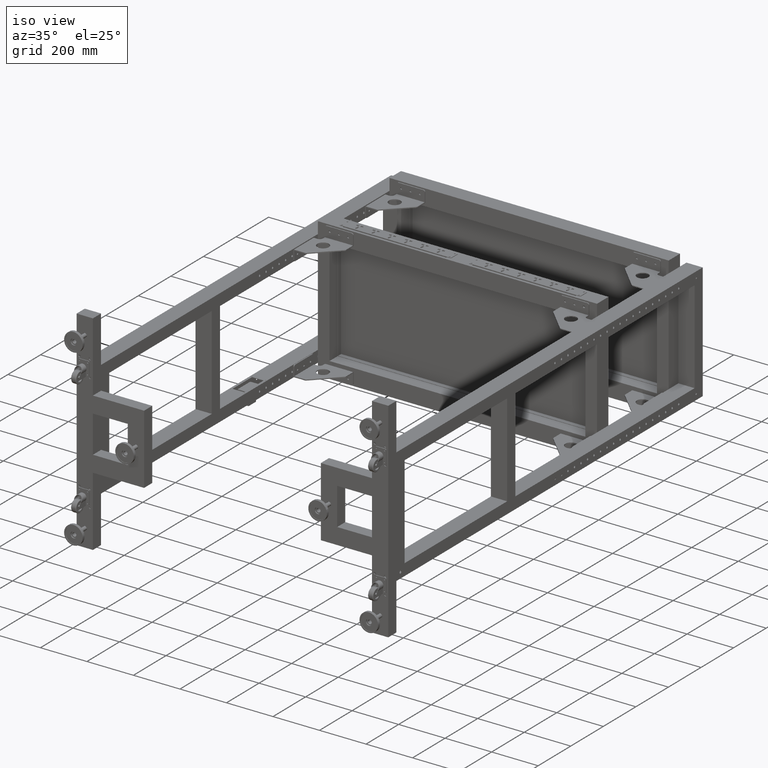
[diagram: clean part render]
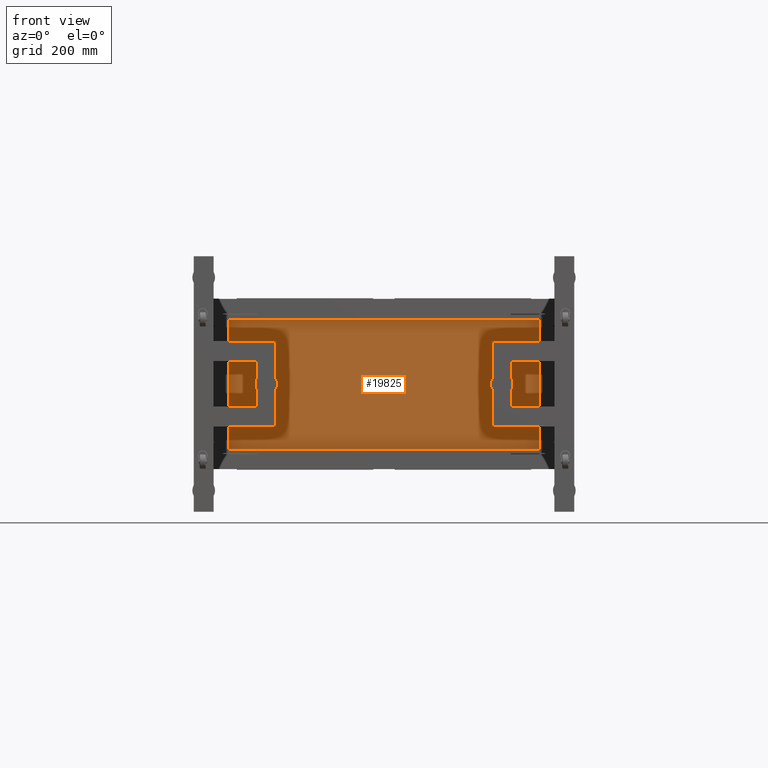
[diagram: tour spotlight — one face highlighted and labeled with its STEP entity id]
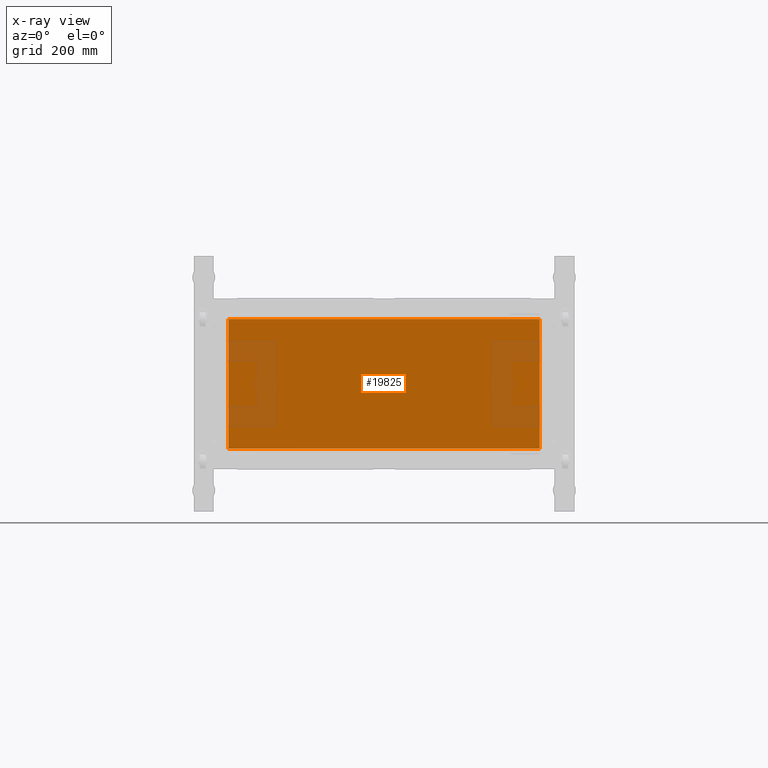
[diagram: x-ray of the same camera — body ghosted, this tour face saturated]
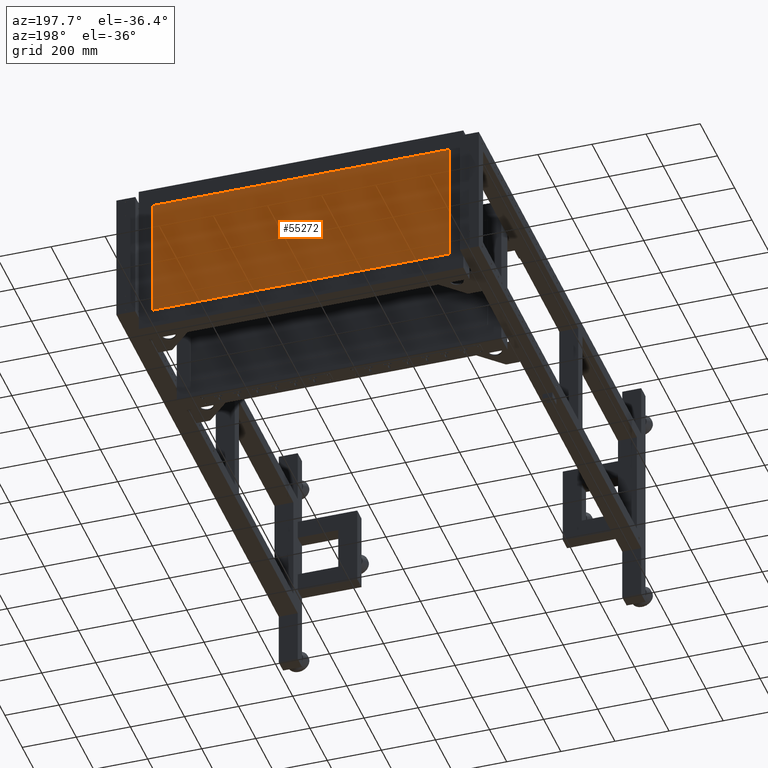
[diagram: tour spotlight — one face highlighted and labeled with its STEP entity id]
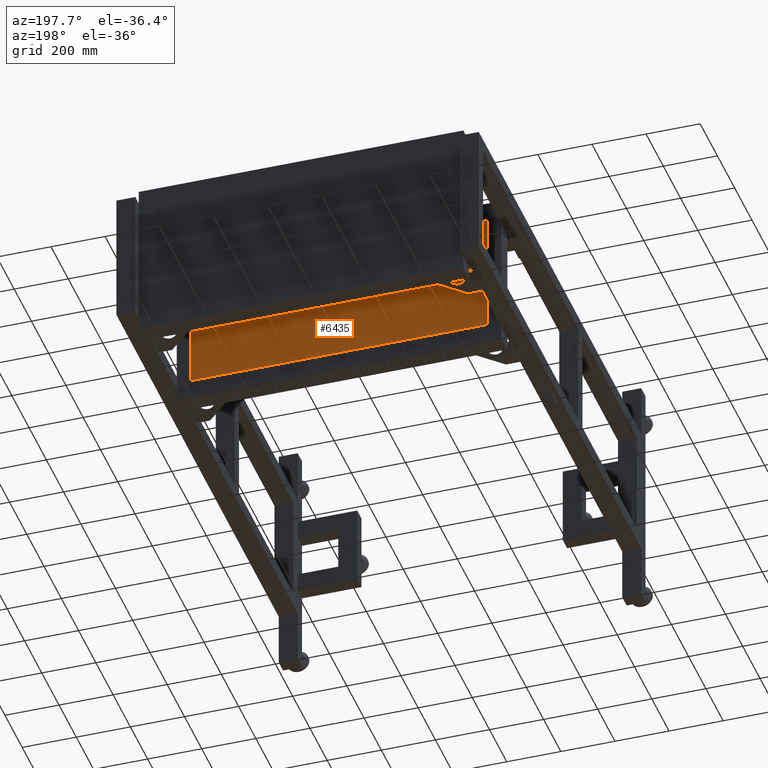
[diagram: tour spotlight — one face highlighted and labeled with its STEP entity id]
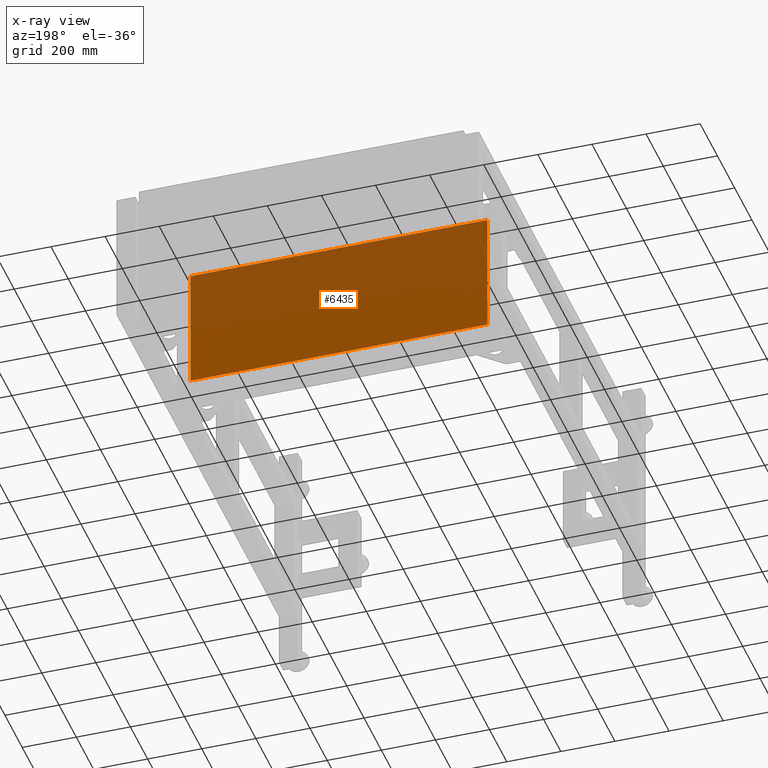
[diagram: x-ray of the same camera — body ghosted, this tour face saturated]
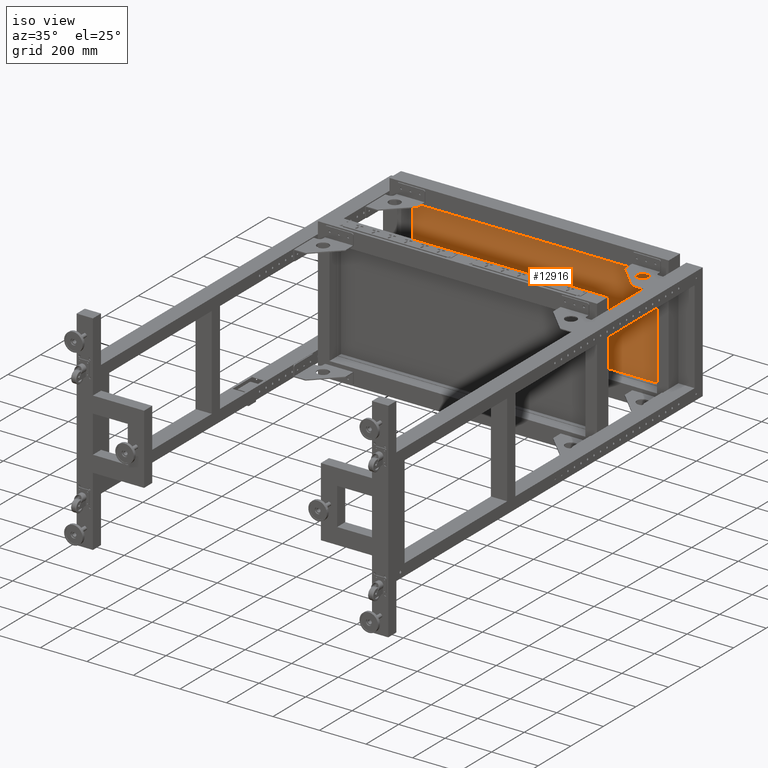
[diagram: tour spotlight — one face highlighted and labeled with its STEP entity id]
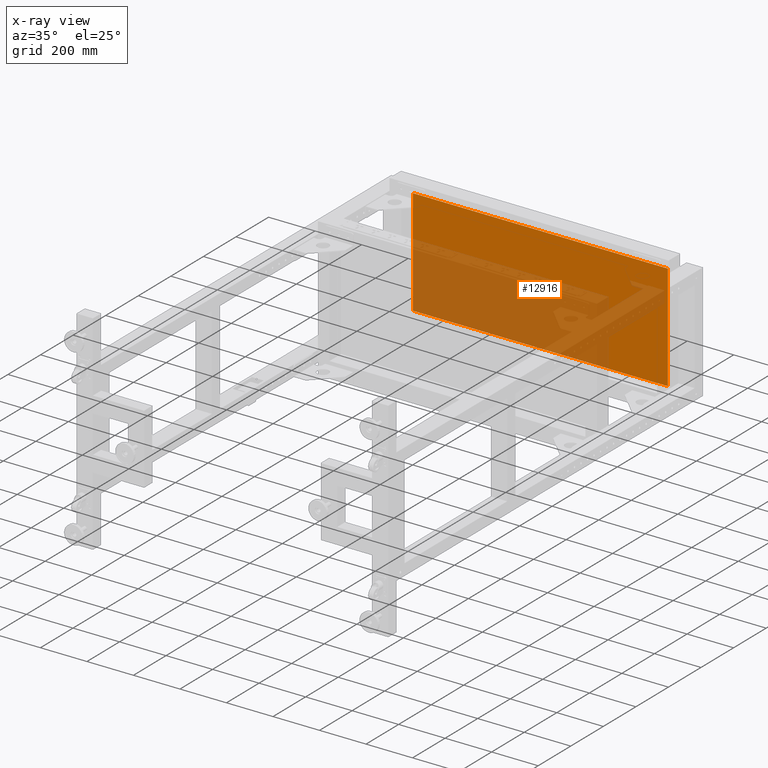
[diagram: x-ray of the same camera — body ghosted, this tour face saturated]
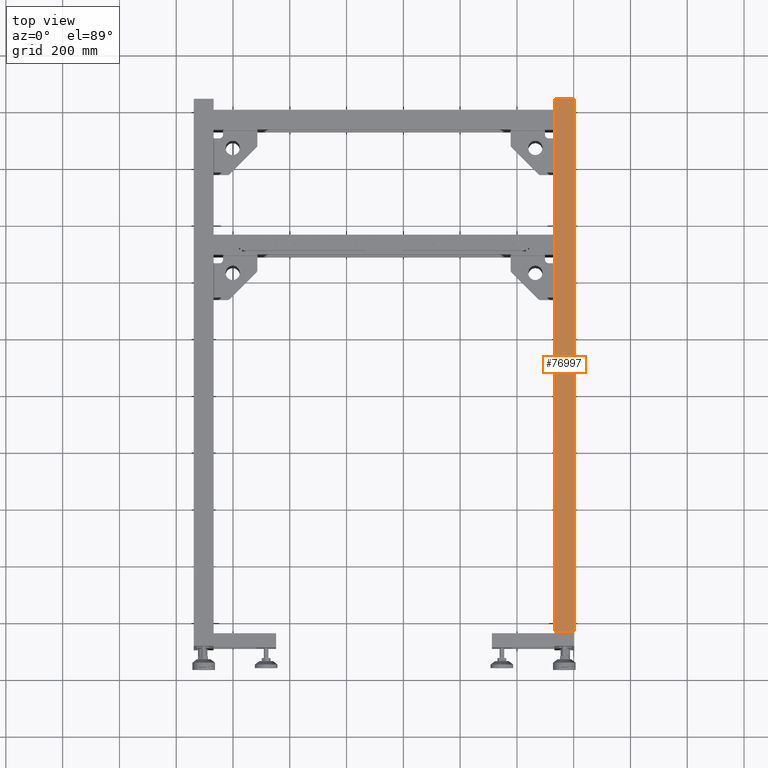
[diagram: tour spotlight — one face highlighted and labeled with its STEP entity id]
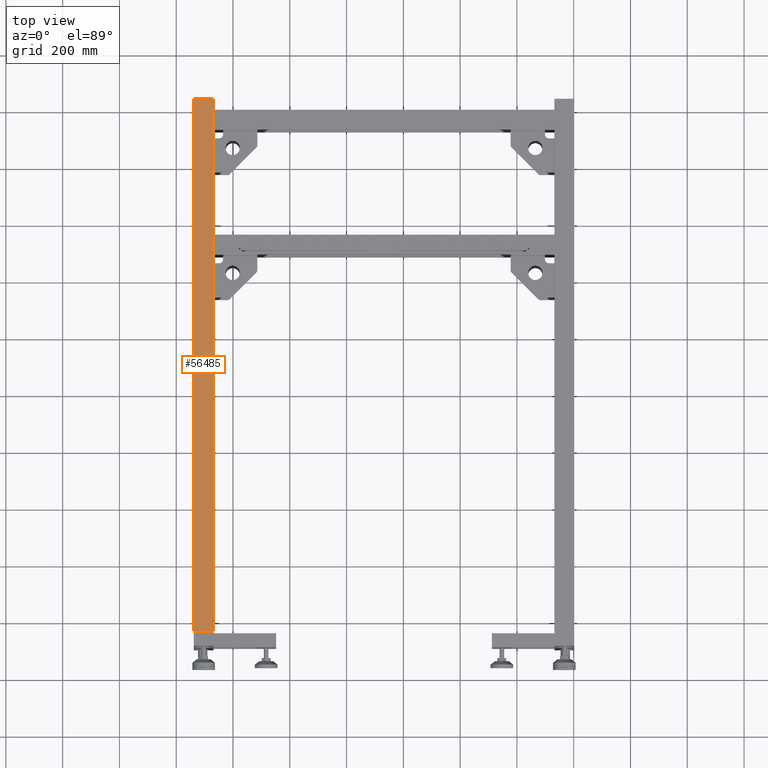
[diagram: tour spotlight — one face highlighted and labeled with its STEP entity id]
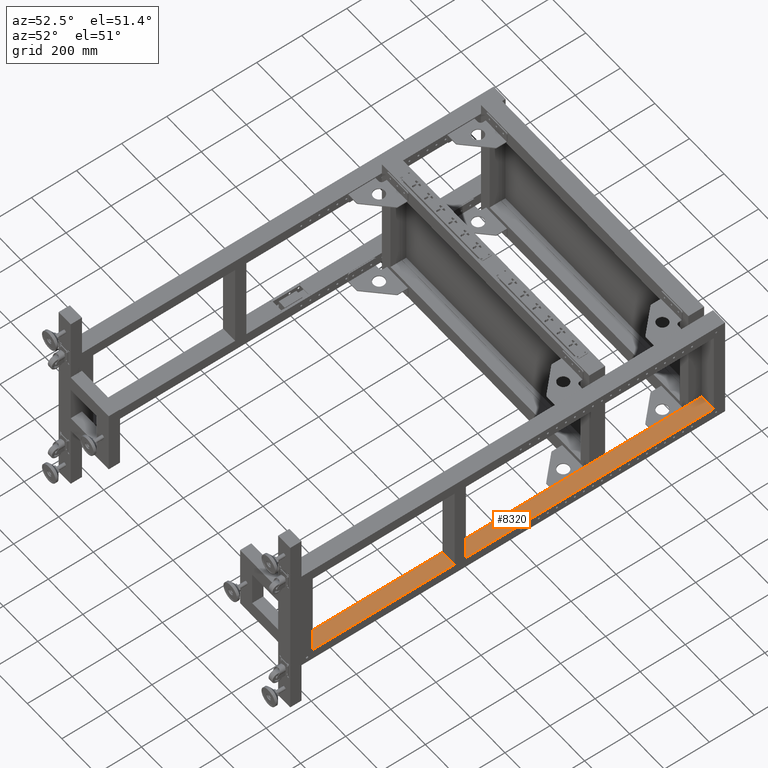
[diagram: tour spotlight — one face highlighted and labeled with its STEP entity id]
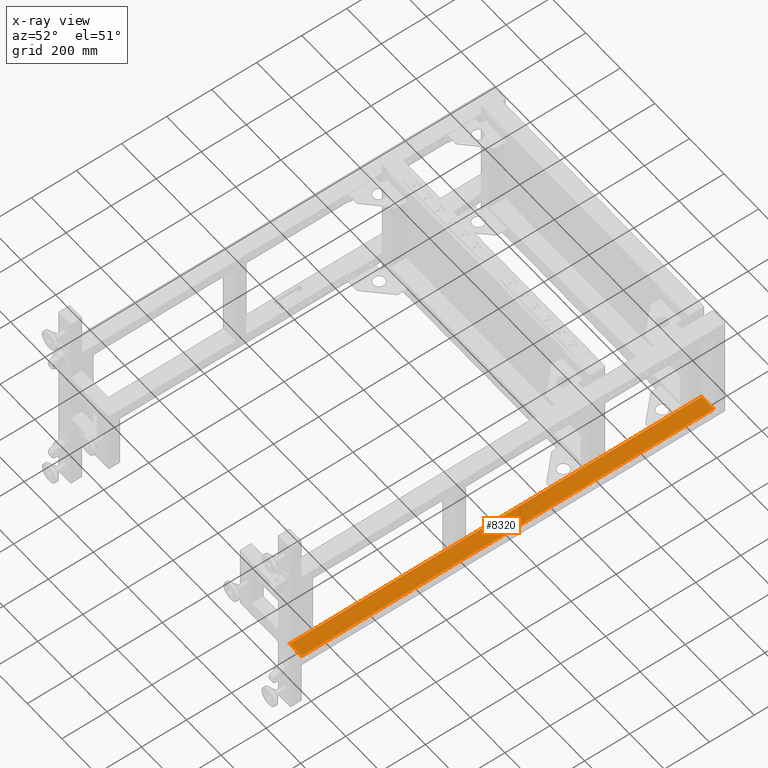
[diagram: x-ray of the same camera — body ghosted, this tour face saturated]
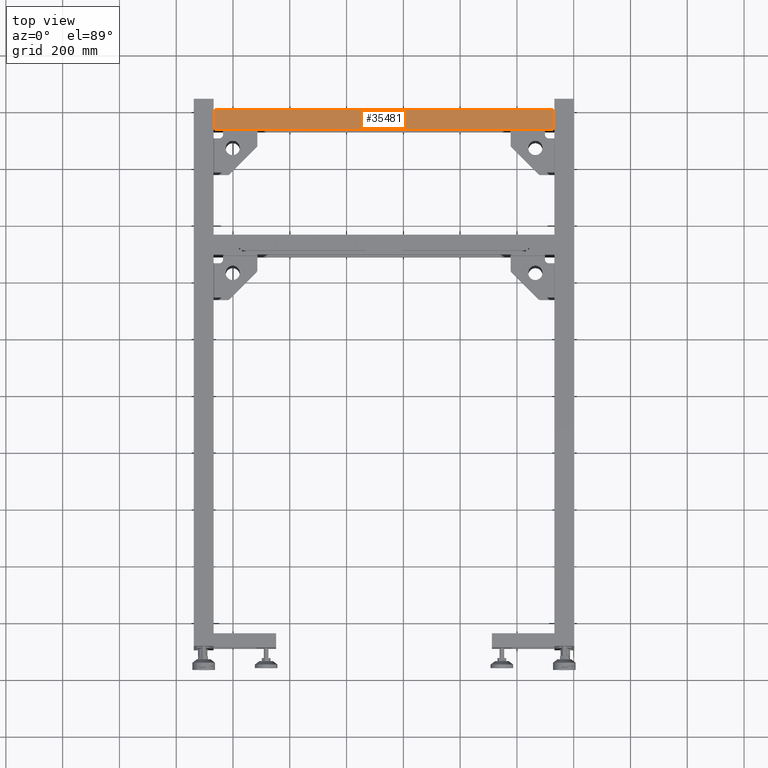
[diagram: tour spotlight — one face highlighted and labeled with its STEP entity id]
A machine part: a face-by-face anatomy tour. The part has 2581 B-rep faces; the first image is the clean iso view, then the 8 largest visible faces are spotlighted one at a time (largest first), each with its STEP entity span.

Face 1 — front view, entity #19825. An x-ray twin of the same camera follows (body ghosted, this face saturated) — the face is partly hidden behind the body. In plain terms, the highlighted planar face has unit normal (-0, 1, -0).
Definition (entity closure, byte-faithful):
#1847 = DIRECTION ( 'NONE',  ( 0.000000000000000000, 1.000000000000000472E-15, 1.000000000000000000 ) ) ;
#4309 = DIRECTION ( 'NONE',  ( 1.000000000000000000, 2.251766706479394348E-16, 0.000000000000000000 ) ) ;
#7225 = VECTOR ( 'NONE', #1847, 1000.000000000000000 ) ;
#7832 = EDGE_CURVE ( 'NONE', #37979, #72688, #59175, .T. ) ;
#10231 = PLANE ( 'NONE',  #36209 ) ;
#11341 = VERTEX_POINT ( 'NONE', #29491 ) ;
#12967 = EDGE_CURVE ( 'NONE', #11341, #52739, #42860, .T. ) ;
#17535 = ORIENTED_EDGE ( 'NONE', *, *, #22783, .F. ) ;
#19825 = ADVANCED_FACE ( 'NONE', ( #66707 ), #10231, .F. ) ;
#22783 = EDGE_CURVE ( 'NONE', #37979, #52739, #26241, .T. ) ;
#26241 = LINE ( 'NONE', #76632, #7225 ) ;
#28246 = ORIENTED_EDGE ( 'NONE', *, *, #7832, .T. ) ;
#29491 = CARTESIAN_POINT ( 'NONE',  ( -119.6824874371840224, 555.4410804020129717, 228.4900000000081093 ) ) ;
#32275 = CARTESIAN_POINT ( 'NONE',  ( -119.6824874371840224, 555.4410804020125170, -228.4899999999998954 ) ) ;
#36209 = AXIS2_PLACEMENT_3D ( 'NONE', #78479, #59814, #72813 ) ;
#37979 = VERTEX_POINT ( 'NONE', #76461 ) ;
#41301 = CARTESIAN_POINT ( 'NONE',  ( -2286.662487437184154, 555.4410804020121759, -228.4899999999998954 ) ) ;
#41861 = EDGE_LOOP ( 'NONE', ( #41943, #17535, #28246, #58431 ) ) ;
#41943 = ORIENTED_EDGE ( 'NONE', *, *, #12967, .T. ) ;
#42860 = LINE ( 'NONE', #48507, #57841 ) ;
#45625 = LINE ( 'NONE', #62718, #69401 ) ;
#45980 = EDGE_CURVE ( 'NONE', #72688, #11341, #45625, .T. ) ;
#48507 = CARTESIAN_POINT ( 'NONE',  ( 110.3175125628159634, 555.4410804020130854, 228.4900000000001228 ) ) ;
#50513 = DIRECTION ( 'NONE',  ( -2.251766706479395497E-31, 1.000000000000000472E-15, 1.000000000000000000 ) ) ;
#52739 = VERTEX_POINT ( 'NONE', #79647 ) ;
#57841 = VECTOR ( 'NONE', #73295, 1000.000000000000000 ) ;
#58408 = VECTOR ( 'NONE', #4309, 1000.000000000000000 ) ;
#58431 = ORIENTED_EDGE ( 'NONE', *, *, #45980, .T. ) ;
#59175 = LINE ( 'NONE', #41301, #58408 ) ;
#59814 = DIRECTION ( 'NONE',  ( -2.251766706479394348E-16, 1.000000000000000000, -1.000000000000000472E-15 ) ) ;
#62718 = CARTESIAN_POINT ( 'NONE',  ( -119.6824874371840224, 555.4410804020125170, -228.4899999999998954 ) ) ;
#66707 = FACE_OUTER_BOUND ( 'NONE', #41861, .T. ) ;
#69401 = VECTOR ( 'NONE', #50513, 1000.000000000000000 ) ;
#72688 = VERTEX_POINT ( 'NONE', #32275 ) ;
#72813 = DIRECTION ( 'NONE',  ( -2.251766706479395497E-31, 1.000000000000000472E-15, 1.000000000000000000 ) ) ;
#73295 = DIRECTION ( 'NONE',  ( -1.000000000000000000, -2.251766706479394348E-16, 0.000000000000000000 ) ) ;
#76461 = CARTESIAN_POINT ( 'NONE',  ( -1216.662487437185973, 555.4410804020124033, -228.4899999999998954 ) ) ;
#76632 = CARTESIAN_POINT ( 'NONE',  ( -1216.662487437185973, 555.4410804020124033, -228.4899999999998954 ) ) ;
#78479 = CARTESIAN_POINT ( 'NONE',  ( -1088.172487437184145, 555.4410804020126307, 1.110223024625156540E-13 ) ) ;
#79647 = CARTESIAN_POINT ( 'NONE',  ( -1216.662487437185973, 555.4410804020128580, 228.4900000000081093 ) ) ;

Face 2 — auxiliary view, entity #55272. In plain terms, the highlighted planar face has unit normal (-0, 1, 0).
Definition (entity closure, byte-faithful):
#3478 = LINE ( 'NONE', #28263, #77730 ) ;
#5108 = AXIS2_PLACEMENT_3D ( 'NONE', #76356, #56879, #20693 ) ;
#5643 = EDGE_LOOP ( 'NONE', ( #10955, #66353, #71340, #75651 ) ) ;
#6921 = CARTESIAN_POINT ( 'NONE',  ( -1216.662487437185973, 996.9410804020126307, 228.4900000000011744 ) ) ;
#10955 = ORIENTED_EDGE ( 'NONE', *, *, #31285, .F. ) ;
#12162 = VECTOR ( 'NONE', #41537, 1000.000000000000000 ) ;
#20693 = DIRECTION ( 'NONE',  ( 2.251766706479395497E-31, -1.000000000000000472E-15, 1.000000000000000000 ) ) ;
#27013 = DIRECTION ( 'NONE',  ( 1.000000000000000000, 2.251766706479394348E-16, 0.000000000000000000 ) ) ;
#28263 = CARTESIAN_POINT ( 'NONE',  ( -1216.662487437185973, 996.9410804020130854, -228.4899999999988438 ) ) ;
#29357 = CARTESIAN_POINT ( 'NONE',  ( -119.6824874371840224, 996.9410804020131991, -228.4899999999988438 ) ) ;
#29473 = CARTESIAN_POINT ( 'NONE',  ( -119.6824874371840224, 996.9410804020127443, 228.4900000000011744 ) ) ;
#31285 = EDGE_CURVE ( 'NONE', #66039, #31365, #64386, .T. ) ;
#31365 = VERTEX_POINT ( 'NONE', #48525 ) ;
#33941 = CARTESIAN_POINT ( 'NONE',  ( -2286.662487437184154, 996.9410804020127443, -228.4899999999988438 ) ) ;
#35504 = EDGE_CURVE ( 'NONE', #66039, #59304, #3478, .T. ) ;
#36692 = LINE ( 'NONE', #29357, #72758 ) ;
#39790 = PLANE ( 'NONE',  #5108 ) ;
#41537 = DIRECTION ( 'NONE',  ( -1.000000000000000000, -2.251766706479394348E-16, 0.000000000000000000 ) ) ;
#41984 = DIRECTION ( 'NONE',  ( 2.251766706479395497E-31, -1.000000000000000472E-15, 1.000000000000000000 ) ) ;
#43720 = EDGE_CURVE ( 'NONE', #51750, #59304, #47600, .T. ) ;
#44689 = FACE_OUTER_BOUND ( 'NONE', #5643, .T. ) ;
#47600 = LINE ( 'NONE', #72400, #12162 ) ;
#48525 = CARTESIAN_POINT ( 'NONE',  ( -119.6824874371840224, 996.9410804020131991, -228.4899999999988438 ) ) ;
#48838 = CARTESIAN_POINT ( 'NONE',  ( -1216.662487437185973, 996.9410804020130854, -228.4899999999988438 ) ) ;
#51750 = VERTEX_POINT ( 'NONE', #29473 ) ;
#53041 = DIRECTION ( 'NONE',  ( 0.000000000000000000, -1.000000000000000472E-15, 1.000000000000000000 ) ) ;
#55272 = ADVANCED_FACE ( 'NONE', ( #44689 ), #39790, .T. ) ;
#56879 = DIRECTION ( 'NONE',  ( -2.251766706479394348E-16, 1.000000000000000000, 1.000000000000000472E-15 ) ) ;
#59304 = VERTEX_POINT ( 'NONE', #6921 ) ;
#64386 = LINE ( 'NONE', #33941, #64494 ) ;
#64494 = VECTOR ( 'NONE', #27013, 1000.000000000000000 ) ;
#66039 = VERTEX_POINT ( 'NONE', #48838 ) ;
#66353 = ORIENTED_EDGE ( 'NONE', *, *, #35504, .T. ) ;
#69435 = EDGE_CURVE ( 'NONE', #31365, #51750, #36692, .T. ) ;
#71340 = ORIENTED_EDGE ( 'NONE', *, *, #43720, .F. ) ;
#72400 = CARTESIAN_POINT ( 'NONE',  ( 110.3175125628159634, 996.9410804020128580, 228.4900000000011744 ) ) ;
#72758 = VECTOR ( 'NONE', #41984, 1000.000000000000000 ) ;
#75651 = ORIENTED_EDGE ( 'NONE', *, *, #69435, .F. ) ;
#76356 = CARTESIAN_POINT ( 'NONE',  ( -1088.172487437184145, 996.9410804020128580, 1.167234175856414311E-12 ) ) ;
#77730 = VECTOR ( 'NONE', #53041, 1000.000000000000000 ) ;

Face 3 — auxiliary view, entity #6435. An x-ray twin of the same camera follows (body ghosted, this face saturated) — the face is partly hidden behind the body. In plain terms, the highlighted planar face has unit normal (-0, 1, -0).
Definition (entity closure, byte-faithful):
#1685 = ORIENTED_EDGE ( 'NONE', *, *, #31304, .F. ) ;
#2579 = CARTESIAN_POINT ( 'NONE',  ( -1216.662487437185973, 556.9410804020125170, -228.4899999999998954 ) ) ;
#6435 = ADVANCED_FACE ( 'NONE', ( #41659 ), #9940, .T. ) ;
#9940 = PLANE ( 'NONE',  #80188 ) ;
#11589 = EDGE_CURVE ( 'NONE', #70250, #70047, #26983, .T. ) ;
#11685 = CARTESIAN_POINT ( 'NONE',  ( -2286.662487437184154, 556.9410804020121759, -228.4899999999998954 ) ) ;
#12652 = CARTESIAN_POINT ( 'NONE',  ( -119.6824874371840224, 556.9410804020126307, -228.4899999999998954 ) ) ;
#16989 = CARTESIAN_POINT ( 'NONE',  ( -119.6824874371840224, 556.9410804020130854, 228.4900000000001228 ) ) ;
#17251 = CARTESIAN_POINT ( 'NONE',  ( -1088.172487437184145, 556.9410804020127443, 1.095223024625156604E-13 ) ) ;
#20532 = DIRECTION ( 'NONE',  ( -2.251766706479395497E-31, 1.000000000000000472E-15, 1.000000000000000000 ) ) ;
#20902 = DIRECTION ( 'NONE',  ( -1.000000000000000000, -2.251766706479394348E-16, 0.000000000000000000 ) ) ;
#22141 = DIRECTION ( 'NONE',  ( -2.251766706479395497E-31, 1.000000000000000472E-15, 1.000000000000000000 ) ) ;
#24581 = CARTESIAN_POINT ( 'NONE',  ( -1216.662487437185973, 556.9410804020125170, -228.4899999999998954 ) ) ;
#26983 = LINE ( 'NONE', #45312, #35996 ) ;
#28986 = ORIENTED_EDGE ( 'NONE', *, *, #11589, .F. ) ;
#31304 = EDGE_CURVE ( 'NONE', #31871, #70250, #33527, .T. ) ;
#31871 = VERTEX_POINT ( 'NONE', #12652 ) ;
#33527 = LINE ( 'NONE', #76194, #77487 ) ;
#35996 = VECTOR ( 'NONE', #20902, 1000.000000000000000 ) ;
#41659 = FACE_OUTER_BOUND ( 'NONE', #61546, .T. ) ;
#45312 = CARTESIAN_POINT ( 'NONE',  ( 110.3175125628159634, 556.9410804020131991, 228.4900000000001228 ) ) ;
#48540 = DIRECTION ( 'NONE',  ( -2.251766706479394348E-16, 1.000000000000000000, -1.000000000000000472E-15 ) ) ;
#48615 = VERTEX_POINT ( 'NONE', #24581 ) ;
#49579 = CARTESIAN_POINT ( 'NONE',  ( -1216.662487437185973, 556.9410804020129717, 228.4900000000001228 ) ) ;
#49846 = LINE ( 'NONE', #11685, #72383 ) ;
#56342 = DIRECTION ( 'NONE',  ( 1.000000000000000000, 2.251766706479394348E-16, 0.000000000000000000 ) ) ;
#57395 = ORIENTED_EDGE ( 'NONE', *, *, #66936, .F. ) ;
#61546 = EDGE_LOOP ( 'NONE', ( #57395, #72323, #28986, #1685 ) ) ;
#65152 = DIRECTION ( 'NONE',  ( 0.000000000000000000, 1.000000000000000472E-15, 1.000000000000000000 ) ) ;
#65941 = LINE ( 'NONE', #2579, #77836 ) ;
#66936 = EDGE_CURVE ( 'NONE', #48615, #31871, #49846, .T. ) ;
#69259 = EDGE_CURVE ( 'NONE', #48615, #70047, #65941, .T. ) ;
#70047 = VERTEX_POINT ( 'NONE', #49579 ) ;
#70250 = VERTEX_POINT ( 'NONE', #16989 ) ;
#72323 = ORIENTED_EDGE ( 'NONE', *, *, #69259, .T. ) ;
#72383 = VECTOR ( 'NONE', #56342, 1000.000000000000000 ) ;
#76194 = CARTESIAN_POINT ( 'NONE',  ( -119.6824874371840224, 556.9410804020126307, -228.4899999999998954 ) ) ;
#77487 = VECTOR ( 'NONE', #20532, 1000.000000000000000 ) ;
#77836 = VECTOR ( 'NONE', #65152, 1000.000000000000000 ) ;
#80188 = AXIS2_PLACEMENT_3D ( 'NONE', #17251, #48540, #22141 ) ;

Face 4 — iso view, entity #12916. An x-ray twin of the same camera follows (body ghosted, this face saturated) — the face is partly hidden behind the body. In plain terms, the highlighted planar face has unit normal (-0, 1, 0).
Definition (entity closure, byte-faithful):
#85 = VERTEX_POINT ( 'NONE', #22426 ) ;
#1400 = CARTESIAN_POINT ( 'NONE',  ( -1216.662487437185973, 995.4410804020130854, -228.4899999999988438 ) ) ;
#2234 = DIRECTION ( 'NONE',  ( -1.000000000000000000, -2.251766706479394348E-16, 0.000000000000000000 ) ) ;
#5754 = DIRECTION ( 'NONE',  ( 1.000000000000000000, 2.251766706479394348E-16, 0.000000000000000000 ) ) ;
#12638 = CARTESIAN_POINT ( 'NONE',  ( -2286.662487437184154, 995.4410804020127443, -228.4899999999988438 ) ) ;
#12916 = ADVANCED_FACE ( 'NONE', ( #60705 ), #43249, .F. ) ;
#17467 = CARTESIAN_POINT ( 'NONE',  ( -119.6824874371840224, 995.4410804020127443, 228.4900000000091609 ) ) ;
#18819 = CARTESIAN_POINT ( 'NONE',  ( -1088.172487437184145, 995.4410804020128580, 1.165734175856414367E-12 ) ) ;
#19227 = DIRECTION ( 'NONE',  ( -2.251766706479394348E-16, 1.000000000000000000, 1.000000000000000472E-15 ) ) ;
#19546 = LINE ( 'NONE', #12638, #25801 ) ;
#19906 = EDGE_CURVE ( 'NONE', #53336, #55499, #19546, .T. ) ;
#20329 = ORIENTED_EDGE ( 'NONE', *, *, #76746, .T. ) ;
#22114 = LINE ( 'NONE', #40813, #54442 ) ;
#22278 = DIRECTION ( 'NONE',  ( 0.000000000000000000, -1.000000000000000472E-15, 1.000000000000000000 ) ) ;
#22426 = CARTESIAN_POINT ( 'NONE',  ( -1216.662487437185973, 995.4410804020126307, 228.4900000000091609 ) ) ;
#25801 = VECTOR ( 'NONE', #5754, 1000.000000000000000 ) ;
#28194 = ORIENTED_EDGE ( 'NONE', *, *, #54250, .F. ) ;
#29013 = DIRECTION ( 'NONE',  ( 2.251766706479395497E-31, -1.000000000000000472E-15, 1.000000000000000000 ) ) ;
#31308 = EDGE_CURVE ( 'NONE', #34767, #85, #58318, .T. ) ;
#34767 = VERTEX_POINT ( 'NONE', #17467 ) ;
#37051 = AXIS2_PLACEMENT_3D ( 'NONE', #18819, #19227, #43626 ) ;
#37305 = CARTESIAN_POINT ( 'NONE',  ( -119.6824874371840224, 995.4410804020131991, -228.4899999999988438 ) ) ;
#40813 = CARTESIAN_POINT ( 'NONE',  ( -119.6824874371840224, 995.4410804020131991, -228.4899999999988438 ) ) ;
#43249 = PLANE ( 'NONE',  #37051 ) ;
#43626 = DIRECTION ( 'NONE',  ( 2.251766706479395497E-31, -1.000000000000000472E-15, 1.000000000000000000 ) ) ;
#46681 = CARTESIAN_POINT ( 'NONE',  ( -1216.662487437185973, 995.4410804020130854, -228.4899999999988438 ) ) ;
#53336 = VERTEX_POINT ( 'NONE', #1400 ) ;
#54250 = EDGE_CURVE ( 'NONE', #53336, #85, #66173, .T. ) ;
#54442 = VECTOR ( 'NONE', #29013, 1000.000000000000000 ) ;
#54924 = ORIENTED_EDGE ( 'NONE', *, *, #19906, .T. ) ;
#55499 = VERTEX_POINT ( 'NONE', #37305 ) ;
#57899 = CARTESIAN_POINT ( 'NONE',  ( 110.3175125628159634, 995.4410804020128580, 228.4900000000011744 ) ) ;
#58318 = LINE ( 'NONE', #57899, #67136 ) ;
#60705 = FACE_OUTER_BOUND ( 'NONE', #71697, .T. ) ;
#66173 = LINE ( 'NONE', #46681, #67294 ) ;
#67136 = VECTOR ( 'NONE', #2234, 1000.000000000000000 ) ;
#67294 = VECTOR ( 'NONE', #22278, 1000.000000000000000 ) ;
#71697 = EDGE_LOOP ( 'NONE', ( #77148, #28194, #54924, #20329 ) ) ;
#76746 = EDGE_CURVE ( 'NONE', #55499, #34767, #22114, .T. ) ;
#77148 = ORIENTED_EDGE ( 'NONE', *, *, #31308, .T. ) ;

Face 5 — top view, entity #76997. In plain terms, the highlighted planar face has unit normal (0, -0, -1).
Definition (entity closure, byte-faithful):
#991 = LINE ( 'NONE', #6315, #21660 ) ;
#4020 = DIRECTION ( 'NONE',  ( 1.000000000000000000, 6.700651583353614395E-16, 0.000000000000000000 ) ) ;
#5009 = VERTEX_POINT ( 'NONE', #63206 ) ;
#5391 = ORIENTED_EDGE ( 'NONE', *, *, #54580, .F. ) ;
#5538 = DIRECTION ( 'NONE',  ( 1.000000000000000000, 2.251766706479394348E-16, 0.000000000000000000 ) ) ;
#6170 = CARTESIAN_POINT ( 'NONE',  ( -68.17248743718495518, 919.4410804020113801, 249.9999999999999716 ) ) ;
#6315 = CARTESIAN_POINT ( 'NONE',  ( 1.827512562815769570, 986.4410804020111527, 250.0000000000000000 ) ) ;
#6883 = ORIENTED_EDGE ( 'NONE', *, *, #74618, .F. ) ;
#7298 = DIRECTION ( 'NONE',  ( -2.251766706479394348E-16, 1.000000000000000000, 0.000000000000000000 ) ) ;
#7326 = VECTOR ( 'NONE', #65800, 1000.000000000000000 ) ;
#8705 = VERTEX_POINT ( 'NONE', #11748 ) ;
#9233 = CARTESIAN_POINT ( 'NONE',  ( -68.17248743718407411, 986.4410804020111527, 250.0000000000000000 ) ) ;
#9774 = VERTEX_POINT ( 'NONE', #39931 ) ;
#9914 = VERTEX_POINT ( 'NONE', #6170 ) ;
#9948 = CARTESIAN_POINT ( 'NONE',  ( 1.827512562814881392, 919.4410804020138812, 249.9999999999999716 ) ) ;
#11434 = EDGE_CURVE ( 'NONE', #8705, #12718, #61204, .T. ) ;
#11729 = CARTESIAN_POINT ( 'NONE',  ( -68.18853048807626749, 926.9410804020112664, 249.9999999999999716 ) ) ;
#11748 = CARTESIAN_POINT ( 'NONE',  ( -68.17248743718451465, -844.5589195979887336, 249.9999999999999716 ) ) ;
#12718 = VERTEX_POINT ( 'NONE', #15205 ) ;
#13595 = EDGE_CURVE ( 'NONE', #26916, #24223, #40624, .T. ) ;
#14015 = VERTEX_POINT ( 'NONE', #66425 ) ;
#15205 = CARTESIAN_POINT ( 'NONE',  ( 1.827512562815325481, -844.5589195979887336, 249.9999999999999716 ) ) ;
#15313 = DIRECTION ( 'NONE',  ( -2.251766706479394348E-16, 1.000000000000000000, 0.000000000000000000 ) ) ;
#16217 = CARTESIAN_POINT ( 'NONE',  ( -68.17248743718451465, -844.5589195979887336, 249.9999999999999716 ) ) ;
#18614 = EDGE_LOOP ( 'NONE', ( #24601, #64280, #46832, #57434, #21987, #36601, #28316, #5391, #6883 ) ) ;
#19173 = VECTOR ( 'NONE', #57927, 1000.000000000000000 ) ;
#19403 = DIRECTION ( 'NONE',  ( 1.000000000000000000, 2.251766706479394348E-16, 0.000000000000000000 ) ) ;
#21477 = LINE ( 'NONE', #60882, #69184 ) ;
#21607 = PLANE ( 'NONE',  #49365 ) ;
#21660 = VECTOR ( 'NONE', #31097, 1000.000000000000000 ) ;
#21987 = ORIENTED_EDGE ( 'NONE', *, *, #32219, .F. ) ;
#24223 = VERTEX_POINT ( 'NONE', #53918 ) ;
#24601 = ORIENTED_EDGE ( 'NONE', *, *, #67852, .F. ) ;
#26916 = VERTEX_POINT ( 'NONE', #11729 ) ;
#28316 = ORIENTED_EDGE ( 'NONE', *, *, #53265, .F. ) ;
#29915 = CARTESIAN_POINT ( 'NONE',  ( 1.827512562815325481, -844.5589195979887336, 249.9999999999999716 ) ) ;
#31097 = DIRECTION ( 'NONE',  ( 2.251766706479394348E-16, -1.000000000000000000, 0.000000000000000000 ) ) ;
#32219 = EDGE_CURVE ( 'NONE', #8705, #9914, #35346, .T. ) ;
#32632 = FACE_OUTER_BOUND ( 'NONE', #18614, .T. ) ;
#33588 = VECTOR ( 'NONE', #15313, 1000.000000000000000 ) ;
#33624 = VECTOR ( 'NONE', #7298, 1000.000000000000000 ) ;
#35346 = LINE ( 'NONE', #16217, #61731 ) ;
#36601 = ORIENTED_EDGE ( 'NONE', *, *, #11434, .T. ) ;
#39513 = DIRECTION ( 'NONE',  ( 2.251766706479394348E-16, -1.000000000000000000, 0.000000000000000000 ) ) ;
#39931 = CARTESIAN_POINT ( 'NONE',  ( -68.17248743718407411, 926.9410804020111527, 249.9999999999999716 ) ) ;
#40624 = LINE ( 'NONE', #64602, #7326 ) ;
#43904 = LINE ( 'NONE', #68694, #33624 ) ;
#43985 = VECTOR ( 'NONE', #19403, 1000.000000000000000 ) ;
#44209 = LINE ( 'NONE', #68590, #43985 ) ;
#45233 = CARTESIAN_POINT ( 'NONE',  ( -33.17248743718415227, 1011.441080402011039, 250.0000000000000000 ) ) ;
#46832 = ORIENTED_EDGE ( 'NONE', *, *, #13595, .T. ) ;
#48515 = EDGE_CURVE ( 'NONE', #9914, #24223, #71728, .T. ) ;
#49365 = AXIS2_PLACEMENT_3D ( 'NONE', #45233, #51708, #39513 ) ;
#51708 = DIRECTION ( 'NONE',  ( 0.000000000000000000, -0.000000000000000000, -1.000000000000000000 ) ) ;
#53265 = EDGE_CURVE ( 'NONE', #5009, #12718, #991, .T. ) ;
#53847 = CARTESIAN_POINT ( 'NONE',  ( -68.17248743718407411, 996.9410804020110390, 249.9999999999999716 ) ) ;
#53918 = CARTESIAN_POINT ( 'NONE',  ( -68.18853048807626749, 919.4410804020137675, 249.9999999999999716 ) ) ;
#54580 = EDGE_CURVE ( 'NONE', #14015, #5009, #44209, .T. ) ;
#55807 = VERTEX_POINT ( 'NONE', #53847 ) ;
#57434 = ORIENTED_EDGE ( 'NONE', *, *, #48515, .F. ) ;
#57927 = DIRECTION ( 'NONE',  ( -1.000000000000000000, -1.810846149024760977E-15, 0.000000000000000000 ) ) ;
#59185 = LINE ( 'NONE', #9233, #33588 ) ;
#59517 = EDGE_CURVE ( 'NONE', #26916, #9774, #21477, .T. ) ;
#60125 = DIRECTION ( 'NONE',  ( -2.251766706479394348E-16, 1.000000000000000000, 0.000000000000000000 ) ) ;
#60882 = CARTESIAN_POINT ( 'NONE',  ( -68.17248743718407411, 926.9410804020111527, 249.9999999999999716 ) ) ;
#61204 = LINE ( 'NONE', #29915, #72239 ) ;
#61731 = VECTOR ( 'NONE', #60125, 1000.000000000000000 ) ;
#63206 = CARTESIAN_POINT ( 'NONE',  ( 1.827512562815769570, 1036.441080402011039, 250.0000000000000000 ) ) ;
#64280 = ORIENTED_EDGE ( 'NONE', *, *, #59517, .F. ) ;
#64602 = CARTESIAN_POINT ( 'NONE',  ( -68.18853048807626749, 986.4410804020138812, 249.9999999999999716 ) ) ;
#65800 = DIRECTION ( 'NONE',  ( 1.225176670647939315E-15, -1.000000000000000000, -0.000000000000000000 ) ) ;
#66425 = CARTESIAN_POINT ( 'NONE',  ( -68.17248743718407411, 1036.441080402011039, 250.0000000000000000 ) ) ;
#67852 = EDGE_CURVE ( 'NONE', #9774, #55807, #59185, .T. ) ;
#68590 = CARTESIAN_POINT ( 'NONE',  ( 1.827512562815769570, 1036.441080402011039, 250.0000000000000000 ) ) ;
#68694 = CARTESIAN_POINT ( 'NONE',  ( -68.17248743718407411, 986.4410804020111527, 250.0000000000000000 ) ) ;
#69184 = VECTOR ( 'NONE', #4020, 1000.000000000000000 ) ;
#71728 = LINE ( 'NONE', #9948, #19173 ) ;
#72239 = VECTOR ( 'NONE', #5538, 1000.000000000000000 ) ;
#74618 = EDGE_CURVE ( 'NONE', #55807, #14015, #43904, .T. ) ;
#76997 = ADVANCED_FACE ( 'NONE', ( #32632 ), #21607, .F. ) ;

Face 6 — top view, entity #56485. In plain terms, the highlighted planar face has unit normal (0, 0, -1).
Definition (entity closure, byte-faithful):
#40 = VECTOR ( 'NONE', #39111, 1000.000000000000000 ) ;
#239 = CARTESIAN_POINT ( 'NONE',  ( -1338.172487437185055, -844.5589195979888473, 249.9999999999999716 ) ) ;
#276 = CARTESIAN_POINT ( 'NONE',  ( -1338.172487437185964, 986.4410804020109254, 250.0000000000000000 ) ) ;
#1005 = EDGE_CURVE ( 'NONE', #51390, #25728, #60832, .T. ) ;
#4184 = EDGE_CURVE ( 'NONE', #23836, #20936, #62613, .T. ) ;
#5179 = CARTESIAN_POINT ( 'NONE',  ( -1338.172487437185055, 919.4410804020136538, 249.9999999999999716 ) ) ;
#6822 = ORIENTED_EDGE ( 'NONE', *, *, #65232, .T. ) ;
#7910 = VERTEX_POINT ( 'NONE', #239 ) ;
#9209 = DIRECTION ( 'NONE',  ( 0.000000000000000000, 1.000000000000000000, 0.000000000000000000 ) ) ;
#10115 = EDGE_CURVE ( 'NONE', #16899, #51390, #19555, .T. ) ;
#12907 = VERTEX_POINT ( 'NONE', #74900 ) ;
#14269 = CARTESIAN_POINT ( 'NONE',  ( -1268.156444386293742, 926.9410804020110390, 249.9999999999999716 ) ) ;
#14322 = CARTESIAN_POINT ( 'NONE',  ( -1268.172487437185964, 986.4410804020109254, 250.0000000000000000 ) ) ;
#16899 = VERTEX_POINT ( 'NONE', #22162 ) ;
#19087 = DIRECTION ( 'NONE',  ( -1.000000000000000078E-15, -1.000000000000000000, -0.000000000000000000 ) ) ;
#19120 = DIRECTION ( 'NONE',  ( -1.000000000000000000, 0.000000000000000000, 0.000000000000000000 ) ) ;
#19528 = VECTOR ( 'NONE', #20813, 1000.000000000000000 ) ;
#19555 = LINE ( 'NONE', #63004, #29235 ) ;
#20813 = DIRECTION ( 'NONE',  ( -1.000000000000000000, 0.000000000000000000, 0.000000000000000000 ) ) ;
#20936 = VERTEX_POINT ( 'NONE', #70029 ) ;
#21674 = VECTOR ( 'NONE', #60925, 1000.000000000000000 ) ;
#21775 = LINE ( 'NONE', #27075, #77904 ) ;
#22162 = CARTESIAN_POINT ( 'NONE',  ( -1268.172487437185055, -844.5589195979888473, 249.9999999999999716 ) ) ;
#22588 = EDGE_CURVE ( 'NONE', #20936, #7910, #66922, .T. ) ;
#23551 = LINE ( 'NONE', #28433, #21674 ) ;
#23836 = VERTEX_POINT ( 'NONE', #60539 ) ;
#23880 = CARTESIAN_POINT ( 'NONE',  ( -1268.172487437185055, 919.4410804020111527, 249.9999999999999716 ) ) ;
#25728 = VERTEX_POINT ( 'NONE', #70952 ) ;
#26888 = LINE ( 'NONE', #14322, #40 ) ;
#27075 = CARTESIAN_POINT ( 'NONE',  ( -1268.172487437185964, 986.4410804020109254, 250.0000000000000000 ) ) ;
#27611 = VECTOR ( 'NONE', #29963, 1000.000000000000000 ) ;
#27946 = ORIENTED_EDGE ( 'NONE', *, *, #75809, .F. ) ;
#28365 = PLANE ( 'NONE',  #50694 ) ;
#28433 = CARTESIAN_POINT ( 'NONE',  ( -1268.172487437185964, 926.9410804020109254, 249.9999999999999716 ) ) ;
#29235 = VECTOR ( 'NONE', #70618, 1000.000000000000000 ) ;
#29963 = DIRECTION ( 'NONE',  ( 1.000000000000000000, -1.585669478376821542E-15, 0.000000000000000000 ) ) ;
#33255 = FACE_OUTER_BOUND ( 'NONE', #58516, .T. ) ;
#35325 = ORIENTED_EDGE ( 'NONE', *, *, #1005, .T. ) ;
#35533 = ORIENTED_EDGE ( 'NONE', *, *, #36676, .T. ) ;
#36676 = EDGE_CURVE ( 'NONE', #12907, #54751, #21775, .T. ) ;
#36682 = VECTOR ( 'NONE', #19087, 1000.000000000000000 ) ;
#38713 = CARTESIAN_POINT ( 'NONE',  ( -1338.172487437185055, -844.5589195979888473, 249.9999999999999716 ) ) ;
#39111 = DIRECTION ( 'NONE',  ( 0.000000000000000000, 1.000000000000000000, 0.000000000000000000 ) ) ;
#40572 = DIRECTION ( 'NONE',  ( 0.000000000000000000, 0.000000000000000000, -1.000000000000000000 ) ) ;
#48954 = ORIENTED_EDGE ( 'NONE', *, *, #71158, .F. ) ;
#50694 = AXIS2_PLACEMENT_3D ( 'NONE', #64136, #40572, #77131 ) ;
#51390 = VERTEX_POINT ( 'NONE', #23880 ) ;
#53052 = CARTESIAN_POINT ( 'NONE',  ( -1268.172487437185964, 996.9410804020108117, 249.9999999999999716 ) ) ;
#54751 = VERTEX_POINT ( 'NONE', #53052 ) ;
#54818 = ORIENTED_EDGE ( 'NONE', *, *, #22588, .T. ) ;
#55650 = ORIENTED_EDGE ( 'NONE', *, *, #10115, .T. ) ;
#56485 = ADVANCED_FACE ( 'NONE', ( #33255 ), #28365, .F. ) ;
#58516 = EDGE_LOOP ( 'NONE', ( #35533, #65167, #61001, #54818, #27946, #55650, #35325, #48954, #6822 ) ) ;
#60539 = CARTESIAN_POINT ( 'NONE',  ( -1268.172487437185964, 1036.441080402011039, 250.0000000000000000 ) ) ;
#60832 = LINE ( 'NONE', #5179, #27611 ) ;
#60925 = DIRECTION ( 'NONE',  ( -1.000000000000000000, 4.448884876874220047E-16, 0.000000000000000000 ) ) ;
#61001 = ORIENTED_EDGE ( 'NONE', *, *, #4184, .T. ) ;
#62043 = DIRECTION ( 'NONE',  ( 0.000000000000000000, -1.000000000000000000, 0.000000000000000000 ) ) ;
#62613 = LINE ( 'NONE', #75591, #74235 ) ;
#63004 = CARTESIAN_POINT ( 'NONE',  ( -1268.172487437185055, -844.5589195979888473, 249.9999999999999716 ) ) ;
#64136 = CARTESIAN_POINT ( 'NONE',  ( -1303.172487437185964, 1011.441080402011039, 250.0000000000000000 ) ) ;
#65167 = ORIENTED_EDGE ( 'NONE', *, *, #75903, .T. ) ;
#65232 = EDGE_CURVE ( 'NONE', #68374, #12907, #23551, .T. ) ;
#66922 = LINE ( 'NONE', #276, #73351 ) ;
#68374 = VERTEX_POINT ( 'NONE', #14269 ) ;
#69086 = CARTESIAN_POINT ( 'NONE',  ( -1268.156444386293742, 986.4410804020136538, 249.9999999999999716 ) ) ;
#69462 = LINE ( 'NONE', #69086, #36682 ) ;
#70029 = CARTESIAN_POINT ( 'NONE',  ( -1338.172487437185964, 1036.441080402011039, 250.0000000000000000 ) ) ;
#70618 = DIRECTION ( 'NONE',  ( 0.000000000000000000, 1.000000000000000000, 0.000000000000000000 ) ) ;
#70952 = CARTESIAN_POINT ( 'NONE',  ( -1268.156444386293742, 919.4410804020135402, 249.9999999999999716 ) ) ;
#71158 = EDGE_CURVE ( 'NONE', #68374, #25728, #69462, .T. ) ;
#73351 = VECTOR ( 'NONE', #62043, 1000.000000000000000 ) ;
#74235 = VECTOR ( 'NONE', #19120, 1000.000000000000000 ) ;
#74900 = CARTESIAN_POINT ( 'NONE',  ( -1268.172487437185964, 926.9410804020109254, 249.9999999999999716 ) ) ;
#75591 = CARTESIAN_POINT ( 'NONE',  ( -1338.172487437185964, 1036.441080402011039, 250.0000000000000000 ) ) ;
#75809 = EDGE_CURVE ( 'NONE', #16899, #7910, #76065, .T. ) ;
#75903 = EDGE_CURVE ( 'NONE', #54751, #23836, #26888, .T. ) ;
#76065 = LINE ( 'NONE', #38713, #19528 ) ;
#77131 = DIRECTION ( 'NONE',  ( 0.000000000000000000, -1.000000000000000000, 0.000000000000000000 ) ) ;
#77904 = VECTOR ( 'NONE', #9209, 1000.000000000000000 ) ;

Face 7 — auxiliary view, entity #8320. An x-ray twin of the same camera follows (body ghosted, this face saturated) — the face is partly hidden behind the body. In plain terms, the highlighted planar face has unit normal (0, 0, 1).
Definition (entity closure, byte-faithful):
#1577 = CARTESIAN_POINT ( 'NONE',  ( 1.827512562814881392, 919.4410804020138812, -200.0000000000000284 ) ) ;
#2338 = ORIENTED_EDGE ( 'NONE', *, *, #58908, .F. ) ;
#4249 = CARTESIAN_POINT ( 'NONE',  ( -68.18853048807626749, 926.9410804020130854, -200.0000000000000284 ) ) ;
#4547 = EDGE_CURVE ( 'NONE', #39033, #64956, #19446, .T. ) ;
#6597 = LINE ( 'NONE', #31380, #6780 ) ;
#6780 = VECTOR ( 'NONE', #56148, 1000.000000000000000 ) ;
#8320 = ADVANCED_FACE ( 'NONE', ( #37835 ), #80085, .T. ) ;
#10146 = VECTOR ( 'NONE', #30203, 1000.000000000000000 ) ;
#19446 = LINE ( 'NONE', #80412, #53337 ) ;
#19852 = EDGE_CURVE ( 'NONE', #64956, #63838, #65487, .T. ) ;
#20235 = DIRECTION ( 'NONE',  ( -1.000000000000000000, -1.810846149024760977E-15, 0.000000000000000000 ) ) ;
#20710 = VERTEX_POINT ( 'NONE', #4249 ) ;
#22041 = ORIENTED_EDGE ( 'NONE', *, *, #78544, .T. ) ;
#25249 = LINE ( 'NONE', #37058, #30695 ) ;
#25599 = EDGE_CURVE ( 'NONE', #39033, #50755, #80364, .T. ) ;
#26493 = CARTESIAN_POINT ( 'NONE',  ( -68.17248743718407411, 986.4410804020138812, -200.0000000000000284 ) ) ;
#28410 = AXIS2_PLACEMENT_3D ( 'NONE', #31340, #55296, #56487 ) ;
#30203 = DIRECTION ( 'NONE',  ( -1.225176670647939512E-15, 1.000000000000000000, 0.000000000000000000 ) ) ;
#30695 = VECTOR ( 'NONE', #50447, 1000.000000000000000 ) ;
#31340 = CARTESIAN_POINT ( 'NONE',  ( 1.827512562815325481, -844.5589195979887336, -200.0000000000000000 ) ) ;
#31380 = CARTESIAN_POINT ( 'NONE',  ( -68.18853048807626749, 986.4410804020138812, -200.0000000000000284 ) ) ;
#33214 = EDGE_CURVE ( 'NONE', #50755, #43479, #25249, .T. ) ;
#34342 = VERTEX_POINT ( 'NONE', #74454 ) ;
#34789 = CARTESIAN_POINT ( 'NONE',  ( -68.17248743718407411, 926.9410804020129717, -200.0000000000000000 ) ) ;
#37058 = CARTESIAN_POINT ( 'NONE',  ( 1.827512562814881392, 986.4410804020138812, -200.0000000000000284 ) ) ;
#37795 = EDGE_CURVE ( 'NONE', #79603, #43479, #80172, .T. ) ;
#37835 = FACE_OUTER_BOUND ( 'NONE', #62822, .T. ) ;
#38778 = CARTESIAN_POINT ( 'NONE',  ( 1.827512562814881392, 986.4410804020138812, -200.0000000000000284 ) ) ;
#39033 = VERTEX_POINT ( 'NONE', #68094 ) ;
#43221 = CARTESIAN_POINT ( 'NONE',  ( -68.17248743718184301, -844.5589195979888473, -200.0000000000000000 ) ) ;
#43479 = VERTEX_POINT ( 'NONE', #26493 ) ;
#43599 = LINE ( 'NONE', #68388, #61251 ) ;
#44247 = DIRECTION ( 'NONE',  ( -1.000000000000000000, -2.251766706479394348E-16, 0.000000000000000000 ) ) ;
#46060 = ORIENTED_EDGE ( 'NONE', *, *, #4547, .F. ) ;
#50447 = DIRECTION ( 'NONE',  ( -1.000000000000000000, -1.810846149024760977E-15, 0.000000000000000000 ) ) ;
#50755 = VERTEX_POINT ( 'NONE', #38778 ) ;
#52324 = LINE ( 'NONE', #1577, #79012 ) ;
#53337 = VECTOR ( 'NONE', #44247, 1000.000000000000000 ) ;
#55296 = DIRECTION ( 'NONE',  ( 0.000000000000000000, 0.000000000000000000, 1.000000000000000000 ) ) ;
#55567 = CARTESIAN_POINT ( 'NONE',  ( 1.827512562815325481, -844.5589195979887336, -200.0000000000000000 ) ) ;
#55979 = DIRECTION ( 'NONE',  ( -2.251766706479394348E-16, 1.000000000000000000, 0.000000000000000000 ) ) ;
#56063 = ORIENTED_EDGE ( 'NONE', *, *, #37795, .F. ) ;
#56148 = DIRECTION ( 'NONE',  ( 1.225176670647939315E-15, -1.000000000000000000, -0.000000000000000000 ) ) ;
#56185 = DIRECTION ( 'NONE',  ( 1.000000000000000000, 6.700651583353614395E-16, 0.000000000000000000 ) ) ;
#56487 = DIRECTION ( 'NONE',  ( 2.251766706479394348E-16, -1.000000000000000000, 0.000000000000000000 ) ) ;
#57045 = CARTESIAN_POINT ( 'NONE',  ( -68.17248743718518256, 919.4410804020112664, -200.0000000000000000 ) ) ;
#57528 = ORIENTED_EDGE ( 'NONE', *, *, #33214, .T. ) ;
#58908 = EDGE_CURVE ( 'NONE', #20710, #79603, #43599, .T. ) ;
#60202 = DIRECTION ( 'NONE',  ( -2.251766706479394348E-16, 1.000000000000000000, 0.000000000000000000 ) ) ;
#61251 = VECTOR ( 'NONE', #56185, 1000.000000000000000 ) ;
#62822 = EDGE_LOOP ( 'NONE', ( #22041, #69410, #76021, #46060, #64255, #57528, #56063, #2338 ) ) ;
#63838 = VERTEX_POINT ( 'NONE', #57045 ) ;
#64255 = ORIENTED_EDGE ( 'NONE', *, *, #25599, .T. ) ;
#64734 = VECTOR ( 'NONE', #60202, 1000.000000000000000 ) ;
#64956 = VERTEX_POINT ( 'NONE', #72814 ) ;
#65487 = LINE ( 'NONE', #79307, #64734 ) ;
#66589 = EDGE_CURVE ( 'NONE', #63838, #34342, #52324, .T. ) ;
#68094 = CARTESIAN_POINT ( 'NONE',  ( 1.827512562815325481, -844.5589195979887336, -200.0000000000000000 ) ) ;
#68388 = CARTESIAN_POINT ( 'NONE',  ( 1.827512562813993213, 926.9410804020130854, -200.0000000000000000 ) ) ;
#69410 = ORIENTED_EDGE ( 'NONE', *, *, #66589, .F. ) ;
#72814 = CARTESIAN_POINT ( 'NONE',  ( -68.17248743718474202, -844.5589195979887336, -200.0000000000000000 ) ) ;
#74361 = VECTOR ( 'NONE', #55979, 1000.000000000000000 ) ;
#74454 = CARTESIAN_POINT ( 'NONE',  ( -68.18853048807626749, 919.4410804020137675, -200.0000000000000284 ) ) ;
#76021 = ORIENTED_EDGE ( 'NONE', *, *, #19852, .F. ) ;
#78544 = EDGE_CURVE ( 'NONE', #20710, #34342, #6597, .T. ) ;
#79012 = VECTOR ( 'NONE', #20235, 1000.000000000000000 ) ;
#79307 = CARTESIAN_POINT ( 'NONE',  ( -68.17248743718474202, -844.5589195979887336, -200.0000000000000000 ) ) ;
#79603 = VERTEX_POINT ( 'NONE', #34789 ) ;
#80085 = PLANE ( 'NONE',  #28410 ) ;
#80172 = LINE ( 'NONE', #43221, #10146 ) ;
#80364 = LINE ( 'NONE', #55567, #74361 ) ;
#80412 = CARTESIAN_POINT ( 'NONE',  ( 1.827512562815325481, -844.5589195979887336, -200.0000000000000000 ) ) ;

Face 8 — top view, entity #35481. In plain terms, the highlighted planar face has unit normal (-0, 0, -1).
Definition (entity closure, byte-faithful):
#345 = VECTOR ( 'NONE', #25489, 1000.000000000000000 ) ;
#945 = EDGE_LOOP ( 'NONE', ( #69496, #43923, #33476, #45348 ) ) ;
#3417 = CARTESIAN_POINT ( 'NONE',  ( -1266.172487437185964, 996.9410804020118348, 300.0000000000011937 ) ) ;
#5071 = AXIS2_PLACEMENT_3D ( 'NONE', #14869, #40484, #9580 ) ;
#6993 = CARTESIAN_POINT ( 'NONE',  ( -1266.172487437185964, 926.9410804020117212, 300.0000000000009095 ) ) ;
#9580 = DIRECTION ( 'NONE',  ( -2.251766706479394348E-16, 1.000000000000000000, 3.603491776919587486E-15 ) ) ;
#10500 = VECTOR ( 'NONE', #45007, 1000.000000000000000 ) ;
#14525 = LINE ( 'NONE', #25504, #10500 ) ;
#14869 = CARTESIAN_POINT ( 'NONE',  ( 159.8275125628159117, 926.9410804020119485, 300.0000000000009095 ) ) ;
#18475 = CARTESIAN_POINT ( 'NONE',  ( 159.8275125628159117, 926.9410804020119485, 300.0000000000009095 ) ) ;
#25489 = DIRECTION ( 'NONE',  ( -2.251766706479394348E-16, 1.000000000000000000, 3.603491776919587486E-15 ) ) ;
#25504 = CARTESIAN_POINT ( 'NONE',  ( 159.8275125628159117, 996.9410804020120622, 300.0000000000011937 ) ) ;
#27857 = FACE_OUTER_BOUND ( 'NONE', #945, .T. ) ;
#31079 = LINE ( 'NONE', #18475, #79527 ) ;
#33476 = ORIENTED_EDGE ( 'NONE', *, *, #71670, .F. ) ;
#34652 = CARTESIAN_POINT ( 'NONE',  ( -70.17248743718407411, 996.9410804020120622, 300.0000000000011937 ) ) ;
#35481 = ADVANCED_FACE ( 'NONE', ( #27857 ), #52634, .F. ) ;
#35954 = DIRECTION ( 'NONE',  ( -1.000000000000000000, -2.251766706479394348E-16, 0.000000000000000000 ) ) ;
#38954 = LINE ( 'NONE', #75120, #43545 ) ;
#39867 = EDGE_CURVE ( 'NONE', #72768, #76585, #14525, .T. ) ;
#40017 = CARTESIAN_POINT ( 'NONE',  ( -70.17248743718407411, 926.9410804020119485, 300.0000000000009095 ) ) ;
#40484 = DIRECTION ( 'NONE',  ( -8.114222810339800662E-31, 3.603491776919587486E-15, -1.000000000000000000 ) ) ;
#43545 = VECTOR ( 'NONE', #75519, 1000.000000000000000 ) ;
#43923 = ORIENTED_EDGE ( 'NONE', *, *, #46822, .F. ) ;
#45007 = DIRECTION ( 'NONE',  ( -1.000000000000000000, -2.251766706479394348E-16, 0.000000000000000000 ) ) ;
#45348 = ORIENTED_EDGE ( 'NONE', *, *, #71579, .T. ) ;
#46822 = EDGE_CURVE ( 'NONE', #69580, #76585, #38954, .T. ) ;
#52634 = PLANE ( 'NONE',  #5071 ) ;
#56376 = LINE ( 'NONE', #57190, #345 ) ;
#57190 = CARTESIAN_POINT ( 'NONE',  ( -70.17248743718407411, 926.9410804020119485, 300.0000000000009095 ) ) ;
#64401 = VERTEX_POINT ( 'NONE', #40017 ) ;
#69496 = ORIENTED_EDGE ( 'NONE', *, *, #39867, .T. ) ;
#69580 = VERTEX_POINT ( 'NONE', #6993 ) ;
#71579 = EDGE_CURVE ( 'NONE', #64401, #72768, #56376, .T. ) ;
#71670 = EDGE_CURVE ( 'NONE', #64401, #69580, #31079, .T. ) ;
#72768 = VERTEX_POINT ( 'NONE', #34652 ) ;
#75120 = CARTESIAN_POINT ( 'NONE',  ( -1266.172487437185964, 926.9410804020117212, 300.0000000000009095 ) ) ;
#75519 = DIRECTION ( 'NONE',  ( 0.000000000000000000, 1.000000000000000000, 3.603491776919587486E-15 ) ) ;
#76585 = VERTEX_POINT ( 'NONE', #3417 ) ;
#79527 = VECTOR ( 'NONE', #35954, 1000.000000000000000 ) ;